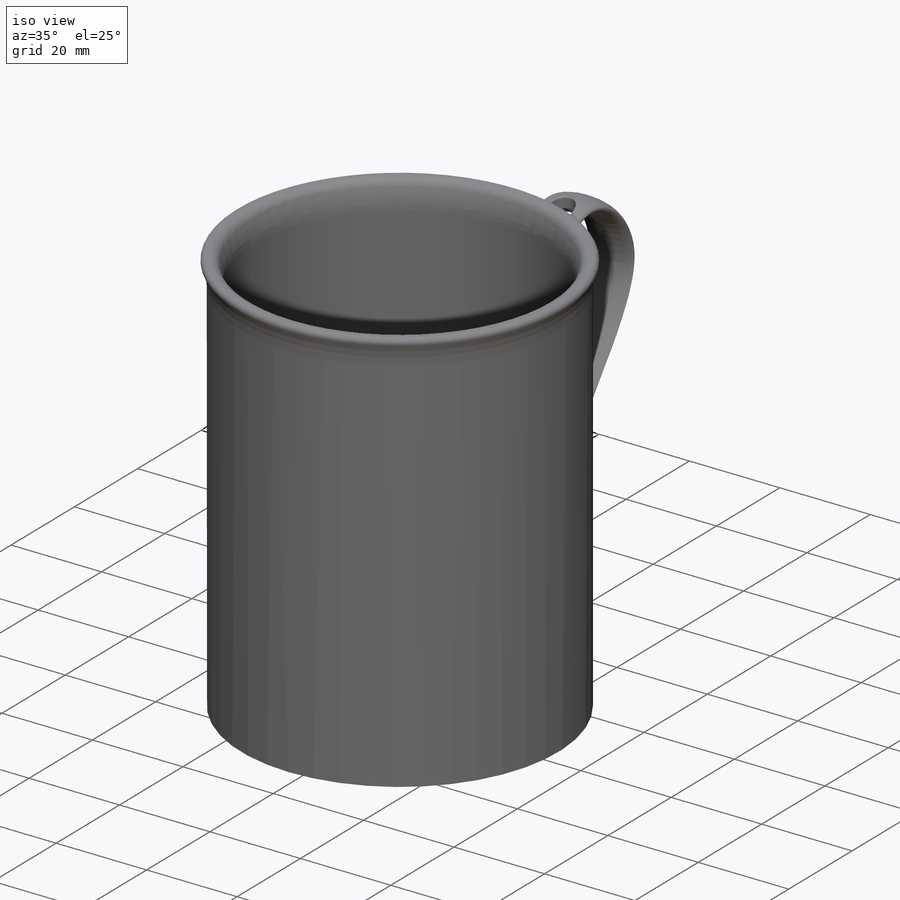
[diagram: iso view]
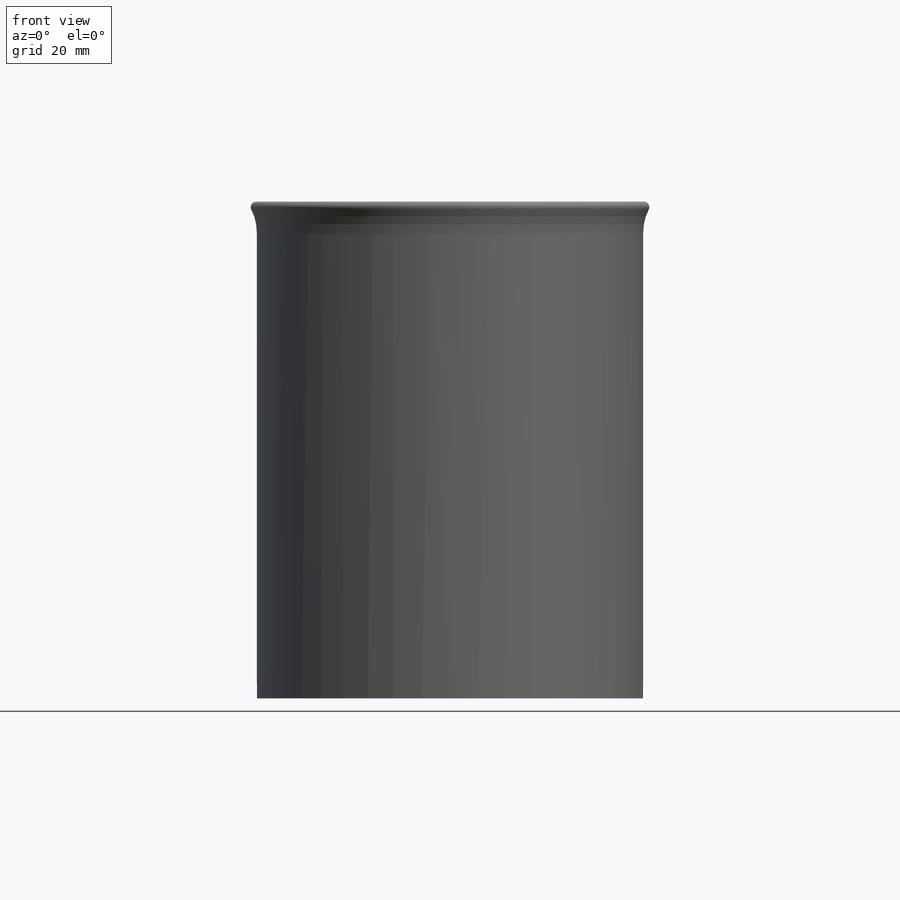
[diagram: front view]
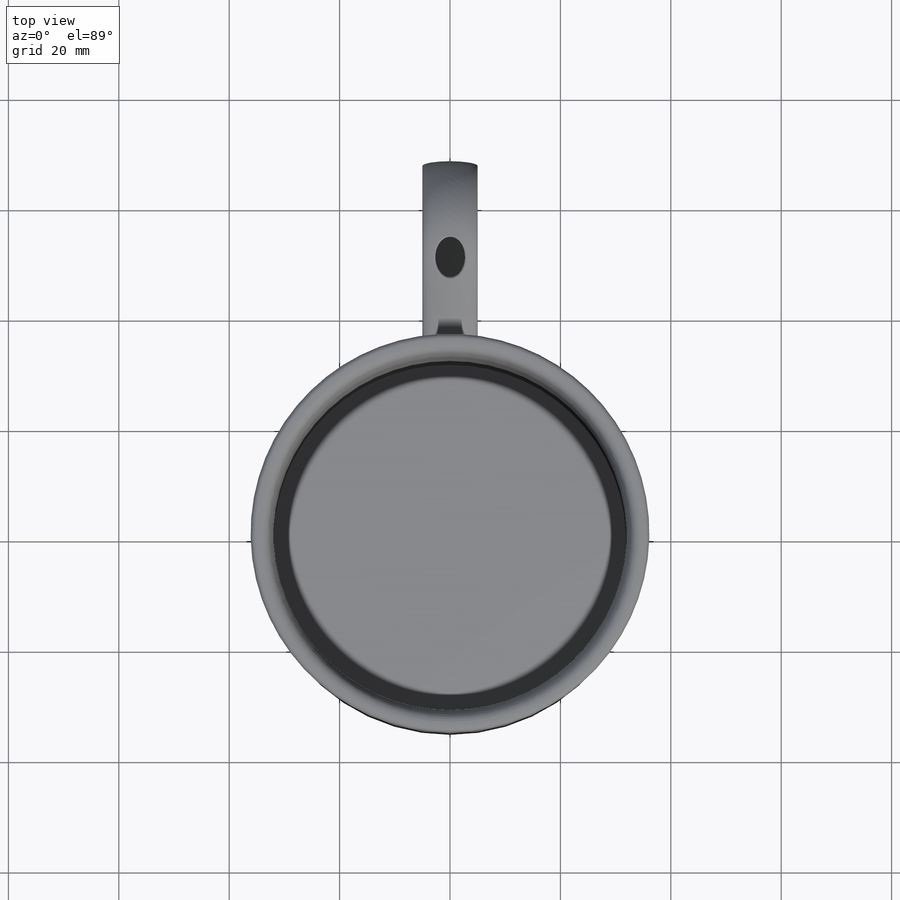
[diagram: top view]
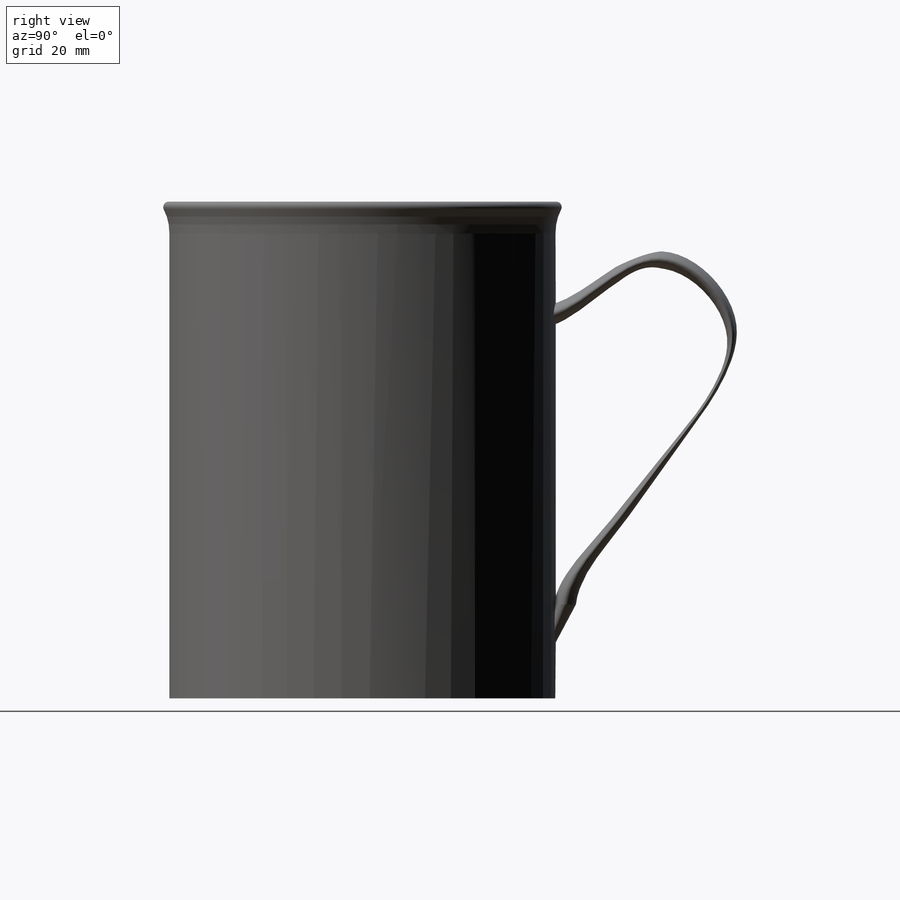
[diagram: right view]
SOLIDWORKS PART (.sldprt)
format: sldprt  version: not decoded by parser v0  size: 398,336 bytes
history: native  units: mm
features: sketch x9, plane x7, fillet x5, cut_extrude x2, shell x2, material x1, revolve x1, chamfer x1 (+13 scaffold rows collapsed)
feature tree (41):
  scaffold x13  (default folders/planes/origin — collapsed)
  material  "材质 <未指定>"
  plane  "前视基准面"
  plane  "上视基准面"
  plane  "右视基准面"
  sketch  "草图5"  dims[D1=35.0mm D2=37.0mm D3=90.0mm]
  revolve  "旋转1"  Angle=360deg
  sketch  "草图6"  dims[D1=62.0mm]
  cut_extrude  "切除-拉伸1"  Depth=2mm
  chamfer  "倒角1"  Distance=2mm Angle=45deg
  fillet  "圆角1"  Radius=1mm
  plane  "基准面3"  Offset=32mm
  sketch  "草图8"  dims[D1=15.0mm D2=10.0mm D3=4.0mm]
  plane  "基准面4"  Offset=15mm
  plane  "基准面5"  Offset=3mm
  sketch  "草图9"  dims[D1=70.0mm D2=4.0mm D3=10.0mm]
  sketch  "草图10"  dims[c1.D1=70.0mm c1.D2=4.0mm c1.D3=10.0mm c2.D1=4.0mm c2.D2=4.0mm c2.D3=3.0mm c2.D4=3.0mm c3.D1=6.0mm]
  plane  "基准面6"  Offset=5mm
  sketch  "草图13"
  sketch  "草图14"
  shell  "抽壳1"  Thickness=3mm
  fillet  "圆角3"  Radius=2mm
  sketch  "草图17"
  shell  "放样3"  [1 undecoded]
  sketch  "草图18"
  cut_extrude  "切除-拉伸2"  Depth=57mm
  fillet  "圆角4"  Radius=0.3mm
  fillet  "圆角5"  Radius=2mm
  fillet  "圆角6"  Radius=0.3mm
decode coverage: 15 of 20 modeling features carry decoded parameters
note: 1 parameter value undecoded
note: suppression state not decoded; provenance and decode notes live in map.json
